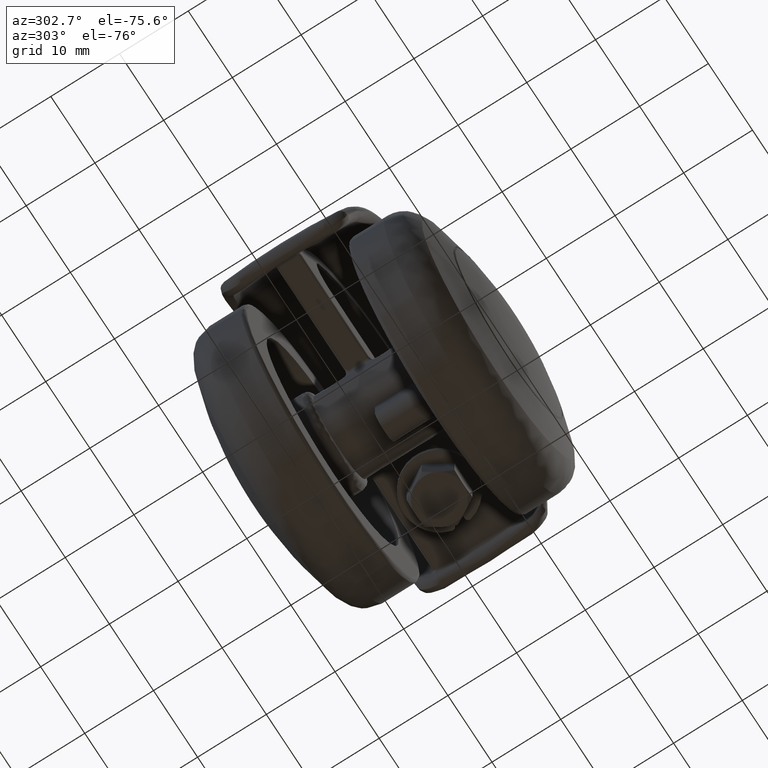
[diagram: clean part render]
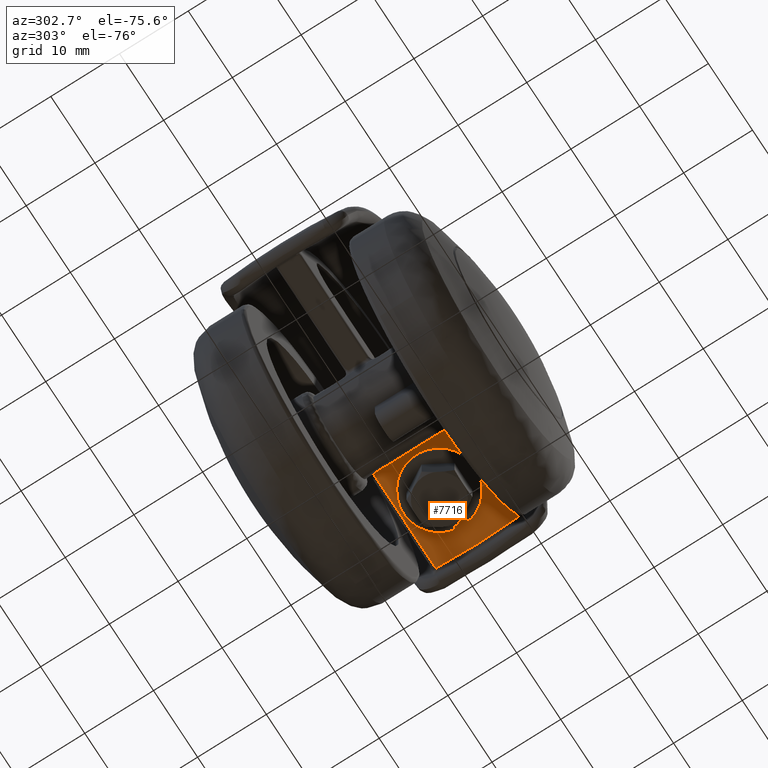
[diagram: same view with one face highlighted and labeled with its STEP entity id]
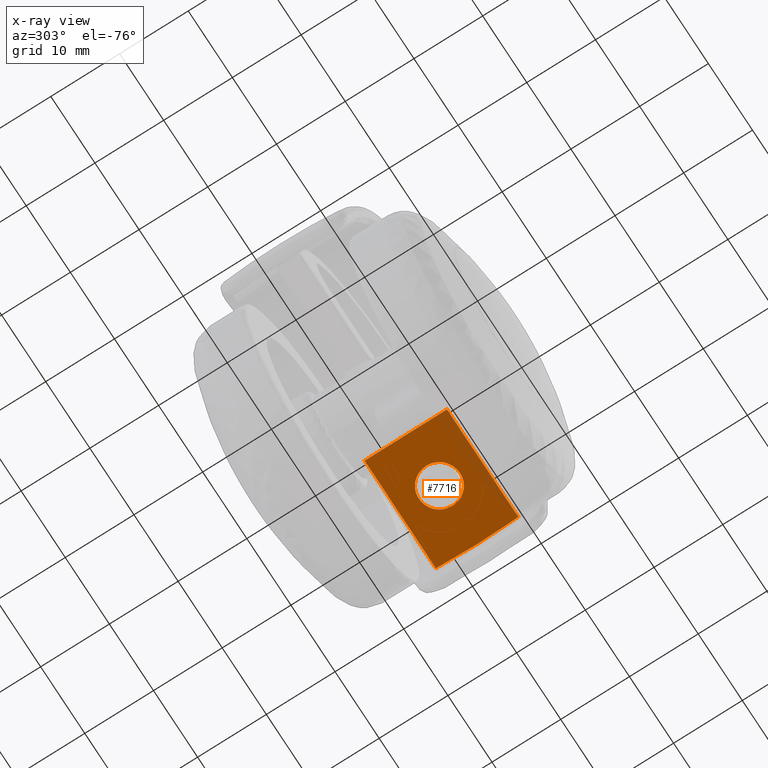
[diagram: x-ray of the same camera — body ghosted, the highlighted face saturated]
A machine part, auxiliary view. The second image highlights one B-rep face of the part: STEP entity #7716.
The next image is the same camera in x-ray: the body ghosted, the highlighted face saturated — about 12% of this face is hidden behind the body in this view.
In plain terms, the highlighted face is a freeform B-spline surface patch.
Its self-contained STEP definition (entity closure, byte-faithful):
#3823=CARTESIAN_POINT('',(12.145897295956910,2.979028579082344,3.500000000000000));
#3824=VERTEX_POINT('',#3823);
#3830=CARTESIAN_POINT('',(15.500000000000000,0.0,3.500000000000000));
#3831=VERTEX_POINT('',#3830);
#3832=CARTESIAN_POINT('',(12.145897295956914,2.979028579082344,3.500000000000000));
#3833=CARTESIAN_POINT('',(12.322327640970684,3.000000000000000,3.500000000000000));
#3834=CARTESIAN_POINT('',(12.500000000000000,3.0,3.500000000000000));
#3835=CARTESIAN_POINT('',(15.500000000000004,3.0,3.499999999999999));
#3836=CARTESIAN_POINT('',(15.500000000000000,0.0,3.500000000000000));
#3844=(BOUNDED_CURVE()B_SPLINE_CURVE(2,(#3832,#3833,#3834,#3835,#3836),.UNSPECIFIED.,.F.,.U.)B_SPLINE_CURVE_WITH_KNOTS((3,2,3),(0.229562473507383,0.250000000000000,0.500000000000000),.UNSPECIFIED.)CURVE()GEOMETRIC_REPRESENTATION_ITEM()RATIONAL_B_SPLINE_CURVE((0.956026754171693,0.976055948323968,1.0,0.707106781186548,1.0))REPRESENTATION_ITEM(''));
#3845=EDGE_CURVE('',#3824,#3831,#3844,.T.);
#3847=CARTESIAN_POINT('',(12.683145618781349,-2.994404395254788,3.500000000000000));
#3848=VERTEX_POINT('',#3847);
#3849=CARTESIAN_POINT('',(15.500000000000000,0.0,3.500000000000000));
#3850=CARTESIAN_POINT('',(15.500000000000009,-2.822118200383236,3.500000000000000));
#3851=CARTESIAN_POINT('',(12.683145618781353,-2.994404395254788,3.500000000000000));
#3859=(BOUNDED_CURVE()B_SPLINE_CURVE(2,(#3849,#3850,#3851),.UNSPECIFIED.,.F.,.U.)B_SPLINE_CURVE_WITH_KNOTS((3,3),(0.500000000000000,0.739332962221595),.UNSPECIFIED.)CURVE()GEOMETRIC_REPRESENTATION_ITEM()RATIONAL_B_SPLINE_CURVE((1.0,0.719603993307035,0.976072041629537))REPRESENTATION_ITEM(''));
#3860=EDGE_CURVE('',#3831,#3848,#3859,.T.);
#3934=CARTESIAN_POINT('',(9.500000000000002,0.0,3.500000000000000));
#3935=VERTEX_POINT('',#3934);
#3936=CARTESIAN_POINT('',(12.683145618781346,-2.994404395254788,3.500000000000000));
#3937=CARTESIAN_POINT('',(12.591658290073044,-3.000000000000000,3.500000000000000));
#3938=CARTESIAN_POINT('',(12.500000000000000,-3.0,3.500000000000000));
#3939=CARTESIAN_POINT('',(9.500000000000002,-3.0,3.499999999999999));
#3940=CARTESIAN_POINT('',(9.500000000000002,0.0,3.500000000000000));
#3948=(BOUNDED_CURVE()B_SPLINE_CURVE(2,(#3936,#3937,#3938,#3939,#3940),.UNSPECIFIED.,.F.,.U.)B_SPLINE_CURVE_WITH_KNOTS((3,2,3),(0.739332962221596,0.750000000000000,1.0),.UNSPECIFIED.)CURVE()GEOMETRIC_REPRESENTATION_ITEM()RATIONAL_B_SPLINE_CURVE((0.976072041629539,0.987502787879514,1.0,0.707106781186548,1.0))REPRESENTATION_ITEM(''));
#3949=EDGE_CURVE('',#3848,#3935,#3948,.T.);
#3951=CARTESIAN_POINT('',(9.500000000000002,0.0,3.500000000000000));
#3952=CARTESIAN_POINT('',(9.500000000000002,2.664523577722933,3.500000000000000));
#3953=CARTESIAN_POINT('',(12.145897295956916,2.979028579082344,3.500000000000000));
#3961=(BOUNDED_CURVE()B_SPLINE_CURVE(2,(#3951,#3952,#3953),.UNSPECIFIED.,.F.,.U.)B_SPLINE_CURVE_WITH_KNOTS((3,3),(0.0,0.229562473507383),.UNSPECIFIED.)CURVE()GEOMETRIC_REPRESENTATION_ITEM()RATIONAL_B_SPLINE_CURVE((1.0,0.731050832862579,0.956026754171693))REPRESENTATION_ITEM(''));
#3962=EDGE_CURVE('',#3935,#3824,#3961,.T.);
#6416=CARTESIAN_POINT('',(21.033291300738899,-6.0,3.500000000000000));
#6417=VERTEX_POINT('',#6416);
#6463=CARTESIAN_POINT('',(4.873397172404481,-6.0,3.500000000000000));
#6464=VERTEX_POINT('',#6463);
#6488=CARTESIAN_POINT('',(21.033291300738899,-6.0,3.500000000000000));
#6489=CARTESIAN_POINT('',(4.873397172404481,-6.0,3.500000000000000));
#6490=QUASI_UNIFORM_CURVE('',1,(#6488,#6489),.UNSPECIFIED.,.F.,.U.);
#6491=EDGE_CURVE('',#6417,#6464,#6490,.T.);
#6541=CARTESIAN_POINT('',(21.033291300738899,6.0,3.500000000000000));
#6542=VERTEX_POINT('',#6541);
#6591=CARTESIAN_POINT('',(4.873397172404481,6.0,3.500000000000000));
#6592=VERTEX_POINT('',#6591);
#6622=CARTESIAN_POINT('',(4.873397172404481,6.0,3.500000000000000));
#6623=CARTESIAN_POINT('',(21.033291300738899,6.0,3.500000000000000));
#6624=QUASI_UNIFORM_CURVE('',1,(#6622,#6623),.UNSPECIFIED.,.F.,.U.);
#6625=EDGE_CURVE('',#6592,#6542,#6624,.T.);
#7606=CARTESIAN_POINT('',(21.033291300738899,6.0,3.500000000000000));
#7607=CARTESIAN_POINT('',(21.146159122114870,4.001725349224130,3.500000000000000));
#7608=CARTESIAN_POINT('',(21.202594180901659,2.001725372624773,3.500000000000000));
#7609=CARTESIAN_POINT('',(21.202594180901649,-2.001725372624776,3.500000000000001));
#7610=CARTESIAN_POINT('',(21.146159122114859,-4.001725349224130,3.500000000000000));
#7611=CARTESIAN_POINT('',(21.033291300738899,-6.0,3.500000000000000));
#7612=B_SPLINE_CURVE_WITH_KNOTS('',3,(#7606,#7607,#7608,#7609,#7610,#7611),.UNSPECIFIED.,.F.,.U.,(4,2,4),(0.0,0.500000000000000,1.0),.UNSPECIFIED.);
#7613=EDGE_CURVE('',#6542,#6417,#7612,.T.);
#7695=CARTESIAN_POINT('',(22.018238152974209,-6.599399976741672,3.500000000000000));
#7696=CARTESIAN_POINT('',(4.057753346326324,-6.599399976741672,3.500000000000000));
#7697=CARTESIAN_POINT('',(22.018238152974209,6.599400298606754,3.500000000000000));
#7698=CARTESIAN_POINT('',(4.057753346326324,6.599400298606754,3.500000000000000));
#7699=B_SPLINE_SURFACE_WITH_KNOTS('',1,1,((#7695,#7697),(#7696,#7698)),.UNSPECIFIED.,.F.,.F.,.U.,(2,2),(2,2),(0.0,17.960484806647891),(0.0,13.198800275348431),.UNSPECIFIED.);
#7700=ORIENTED_EDGE('',*,*,#7613,.T.);
#7701=ORIENTED_EDGE('',*,*,#6491,.T.);
#7702=CARTESIAN_POINT('',(4.873397172404481,6.0,3.500000000000000));
#7703=CARTESIAN_POINT('',(4.873397172404481,-6.0,3.500000000000000));
#7704=QUASI_UNIFORM_CURVE('',1,(#7702,#7703),.UNSPECIFIED.,.F.,.U.);
#7705=EDGE_CURVE('',#6592,#6464,#7704,.T.);
#7706=ORIENTED_EDGE('',*,*,#7705,.F.);
#7707=ORIENTED_EDGE('',*,*,#6625,.T.);
#7708=EDGE_LOOP('',(#7700,#7701,#7706,#7707));
#7709=FACE_OUTER_BOUND('',#7708,.T.);
#7710=ORIENTED_EDGE('',*,*,#3860,.F.);
#7711=ORIENTED_EDGE('',*,*,#3845,.F.);
#7712=ORIENTED_EDGE('',*,*,#3962,.F.);
#7713=ORIENTED_EDGE('',*,*,#3949,.F.);
#7714=EDGE_LOOP('',(#7710,#7711,#7712,#7713));
#7715=FACE_BOUND('',#7714,.T.);
#7716=ADVANCED_FACE('',(#7709,#7715),#7699,.T.);